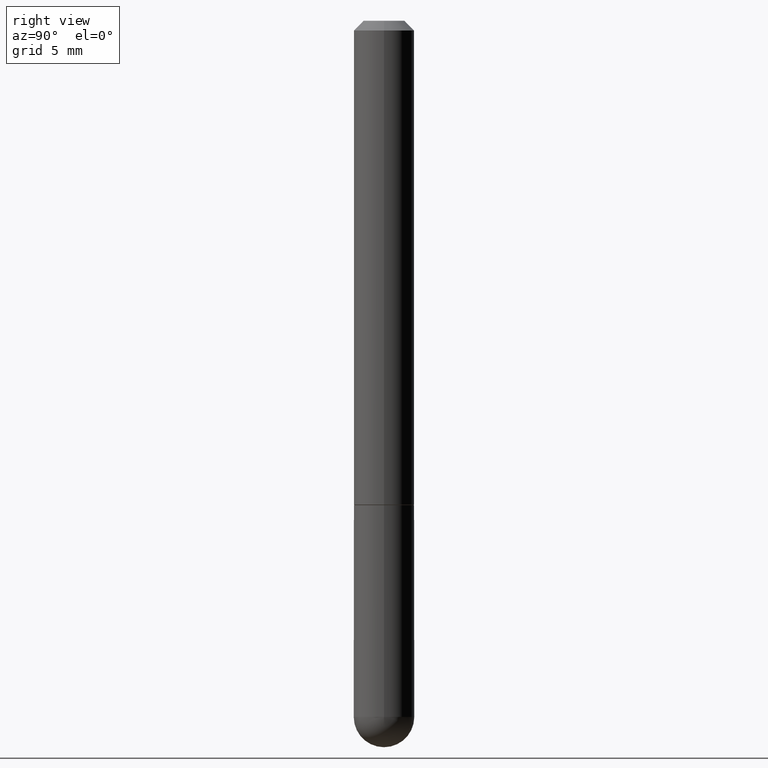
[diagram: clean part render]
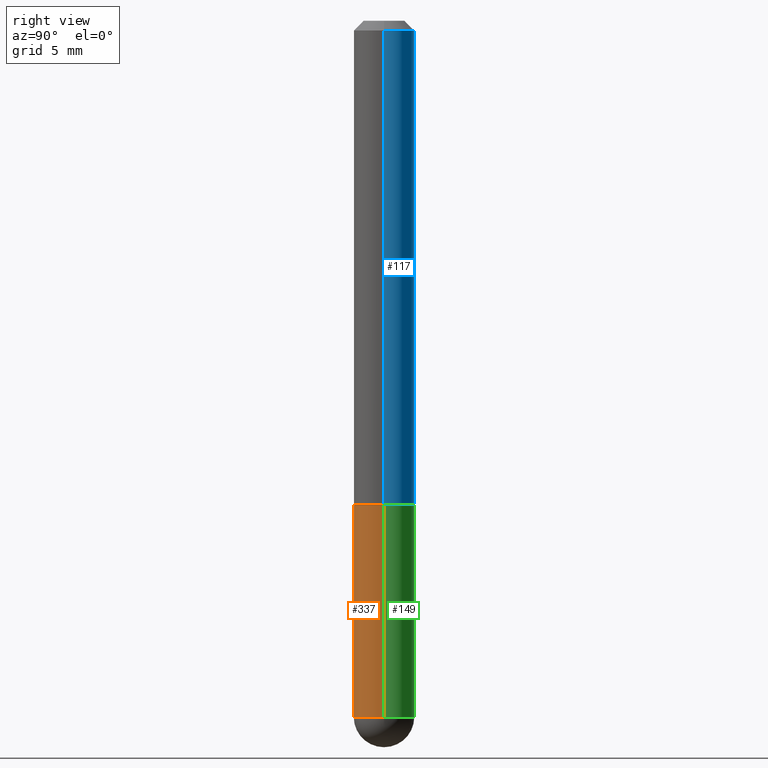
[diagram: same view with three faces highlighted in distinct colors, each labeled with its STEP entity id]
A machine part, right view with three faces highlighted in distinct colors.
Their STEP definitions:

[orange] entity #337 — the highlighted cylindrical surface (edge-blend (fillet) strip) has radius 1.5875 mm, axis along (-0, 0, 1).
#9 = AXIS2_PLACEMENT_3D ( 'NONE', #308, #77, #178 ) ;
#13 = EDGE_CURVE ( 'NONE', #321, #400, #357, .T. ) ;
#17 = CIRCLE ( 'NONE', #311, 0.06250000000000000000 ) ;
#20 = CARTESIAN_POINT ( 'NONE',  ( 0.000000000000000000, 0.000000000000000000, 0.000000000000000000 ) ) ;
#27 = DIRECTION ( 'NONE',  ( -2.445468806185136597E-29, 3.491481338843145583E-15, 1.000000000000000000 ) ) ;
#30 = ORIENTED_EDGE ( 'NONE', *, *, #95, .T. ) ;
#51 = EDGE_CURVE ( 'NONE', #217, #195, #212, .T. ) ;
#77 = DIRECTION ( 'NONE',  ( -2.445468806185136597E-29, 3.491481338843145583E-15, 1.000000000000000000 ) ) ;
#95 = EDGE_CURVE ( 'NONE', #400, #217, #287, .T. ) ;
#96 = LINE ( 'NONE', #233, #369 ) ;
#111 = CARTESIAN_POINT ( 'NONE',  ( 0.06250000000000000000, -3.927916506198537646E-15, -1.000000000000000222 ) ) ;
#113 = DIRECTION ( 'NONE',  ( -2.445468806185136877E-29, 3.491481338843145188E-15, 1.000000000000000000 ) ) ;
#116 = CYLINDRICAL_SURFACE ( 'NONE', #158, 0.06249999999999997224 ) ;
#119 = ORIENTED_EDGE ( 'NONE', *, *, #51, .T. ) ;
#121 = DIRECTION ( 'NONE',  ( -2.445468806185136597E-29, 3.491481338843145583E-15, 1.000000000000000000 ) ) ;
#129 = EDGE_LOOP ( 'NONE', ( #324, #253, #30, #119, #205 ) ) ;
#150 = DIRECTION ( 'NONE',  ( -2.445468806185136597E-29, 3.491481338843145583E-15, 1.000000000000000000 ) ) ;
#153 = VECTOR ( 'NONE', #113, 39.37007874015748143 ) ;
#155 = DIRECTION ( 'NONE',  ( -2.445468806185136877E-29, 3.491481338843145188E-15, 1.000000000000000000 ) ) ;
#158 = AXIS2_PLACEMENT_3D ( 'NONE', #20, #150, #275 ) ;
#160 = VERTEX_POINT ( 'NONE', #360 ) ;
#178 = DIRECTION ( 'NONE',  ( 1.000000000000000000, -6.982962677686268288E-15, 0.000000000000000000 ) ) ;
#184 = DIRECTION ( 'NONE',  ( 1.000000000000000000, -6.982962677686262766E-15, 0.000000000000000000 ) ) ;
#186 = CARTESIAN_POINT ( 'NONE',  ( 2.445468806185136877E-29, -3.491481338843145977E-15, -1.000000000000000222 ) ) ;
#195 = VERTEX_POINT ( 'NONE', #111 ) ;
#205 = ORIENTED_EDGE ( 'NONE', *, *, #284, .F. ) ;
#210 = CARTESIAN_POINT ( 'NONE',  ( 0.06249999999999997224, -4.364351673553914722E-16, 3.047610484872458469E-30 ) ) ;
#212 = LINE ( 'NONE', #210, #153 ) ;
#217 = VERTEX_POINT ( 'NONE', #305 ) ;
#233 = CARTESIAN_POINT ( 'NONE',  ( -0.06249999999999997224, 4.440892098500624190E-16, -3.074334431409315063E-30 ) ) ;
#248 = CARTESIAN_POINT ( 'NONE',  ( -0.06249999999999995143, -3.811153671865022332E-15, -1.437500000000000222 ) ) ;
#253 = ORIENTED_EDGE ( 'NONE', *, *, #13, .T. ) ;
#275 = DIRECTION ( 'NONE',  ( 1.000000000000000000, -6.982962677686266711E-15, 4.876176775795935793E-29 ) ) ;
#284 = EDGE_CURVE ( 'NONE', #160, #195, #17, .T. ) ;
#286 = DIRECTION ( 'NONE',  ( 1.000000000000000000, -6.982962677686268288E-15, 0.000000000000000000 ) ) ;
#287 = CIRCLE ( 'NONE', #9, 0.06249999999999995143 ) ;
#305 = CARTESIAN_POINT ( 'NONE',  ( 0.06249999999999995143, -4.691678049070475040E-15, -1.437500000000000222 ) ) ;
#308 = CARTESIAN_POINT ( 'NONE',  ( 3.515361408891134418E-29, -5.019004424587023131E-15, -1.437500000000000222 ) ) ;
#311 = AXIS2_PLACEMENT_3D ( 'NONE', #186, #121, #184 ) ;
#318 = CARTESIAN_POINT ( 'NONE',  ( -4.440892098500294840E-16, -0.06250000000000532907, -1.437500000000000000 ) ) ;
#321 = VERTEX_POINT ( 'NONE', #248 ) ;
#324 = ORIENTED_EDGE ( 'NONE', *, *, #403, .F. ) ;
#337 = ADVANCED_FACE ( 'NONE', ( #399 ), #116, .T. ) ;
#347 = AXIS2_PLACEMENT_3D ( 'NONE', #353, #27, #286 ) ;
#353 = CARTESIAN_POINT ( 'NONE',  ( 3.515361408891134418E-29, -5.019004424587023131E-15, -1.437500000000000222 ) ) ;
#357 = CIRCLE ( 'NONE', #347, 0.06249999999999995143 ) ;
#360 = CARTESIAN_POINT ( 'NONE',  ( -0.06250000000000000000, -3.811153671865022332E-15, -1.000000000000000222 ) ) ;
#369 = VECTOR ( 'NONE', #155, 39.37007874015748143 ) ;
#399 = FACE_OUTER_BOUND ( 'NONE', #129, .T. ) ;
#400 = VERTEX_POINT ( 'NONE', #318 ) ;
#403 = EDGE_CURVE ( 'NONE', #321, #160, #96, .T. ) ;

[blue] entity #117 — the highlighted cylindrical surface (edge-blend (fillet) strip) has radius 1.5875 mm, axis along (-0, 0, 1).
#12 = CARTESIAN_POINT ( 'NONE',  ( 0.06250000000000004163, -4.364351673553919652E-16, 3.047610484872461972E-30 ) ) ;
#21 = VERTEX_POINT ( 'NONE', #408 ) ;
#43 = CARTESIAN_POINT ( 'NONE',  ( 2.443023337378951835E-29, -3.487989857504302970E-15, -0.9990000000000002212 ) ) ;
#45 = CARTESIAN_POINT ( 'NONE',  ( 0.06250000000000013878, -3.924425024859695428E-15, -0.9990000000000002212 ) ) ;
#46 = VECTOR ( 'NONE', #115, 39.37007874015748143 ) ;
#50 = DIRECTION ( 'NONE',  ( -2.445468806185136597E-29, 3.491481338843145583E-15, 1.000000000000000000 ) ) ;
#64 = ORIENTED_EDGE ( 'NONE', *, *, #221, .T. ) ;
#74 = CARTESIAN_POINT ( 'NONE',  ( 4.890937612370289799E-31, -6.982962677686315028E-17, -0.02000000000000006981 ) ) ;
#75 = VECTOR ( 'NONE', #108, 39.37007874015748143 ) ;
#78 = EDGE_CURVE ( 'NONE', #21, #377, #133, .T. ) ;
#85 = EDGE_CURVE ( 'NONE', #127, #383, #303, .T. ) ;
#108 = DIRECTION ( 'NONE',  ( -2.445468806185136877E-29, 3.491481338843145188E-15, 1.000000000000000000 ) ) ;
#112 = DIRECTION ( 'NONE',  ( -2.445468806185136597E-29, 3.491481338843145583E-15, 1.000000000000000000 ) ) ;
#115 = DIRECTION ( 'NONE',  ( -2.445468806185136877E-29, 3.491481338843145188E-15, 1.000000000000000000 ) ) ;
#117 = ADVANCED_FACE ( 'NONE', ( #272 ), #336, .T. ) ;
#127 = VERTEX_POINT ( 'NONE', #45 ) ;
#130 = EDGE_CURVE ( 'NONE', #127, #21, #339, .T. ) ;
#133 = CIRCLE ( 'NONE', #314, 0.06249999999999995143 ) ;
#134 = CARTESIAN_POINT ( 'NONE',  ( -0.06250000000000013878, -1.334820532290516771E-15, -0.9990000000000002212 ) ) ;
#142 = CARTESIAN_POINT ( 'NONE',  ( -0.06250000000000004163, 4.440892098500629120E-16, -3.074334431409318216E-30 ) ) ;
#151 = EDGE_LOOP ( 'NONE', ( #352, #64, #298, #162 ) ) ;
#162 = ORIENTED_EDGE ( 'NONE', *, *, #130, .F. ) ;
#172 = CARTESIAN_POINT ( 'NONE',  ( 0.000000000000000000, 0.000000000000000000, 0.000000000000000000 ) ) ;
#174 = AXIS2_PLACEMENT_3D ( 'NONE', #43, #112, #301 ) ;
#175 = DIRECTION ( 'NONE',  ( 1.000000000000000000, -6.982962677686266711E-15, 0.000000000000000000 ) ) ;
#196 = AXIS2_PLACEMENT_3D ( 'NONE', #172, #208, #307 ) ;
#208 = DIRECTION ( 'NONE',  ( -2.445468806185136597E-29, 3.491481338843145583E-15, 1.000000000000000000 ) ) ;
#221 = EDGE_CURVE ( 'NONE', #383, #377, #389, .T. ) ;
#223 = CARTESIAN_POINT ( 'NONE',  ( -0.06249999999999995143, 3.666055405785281740E-16, -0.02000000000000006981 ) ) ;
#272 = FACE_OUTER_BOUND ( 'NONE', #151, .T. ) ;
#298 = ORIENTED_EDGE ( 'NONE', *, *, #78, .F. ) ;
#301 = DIRECTION ( 'NONE',  ( 1.000000000000000000, -6.982962677686270655E-15, 0.000000000000000000 ) ) ;
#303 = CIRCLE ( 'NONE', #174, 0.06250000000000013878 ) ;
#307 = DIRECTION ( 'NONE',  ( 1.000000000000000000, -6.982962677686266711E-15, 4.876176775795935793E-29 ) ) ;
#314 = AXIS2_PLACEMENT_3D ( 'NONE', #74, #50, #175 ) ;
#336 = CYLINDRICAL_SURFACE ( 'NONE', #196, 0.06250000000000004163 ) ;
#339 = LINE ( 'NONE', #12, #75 ) ;
#352 = ORIENTED_EDGE ( 'NONE', *, *, #85, .T. ) ;
#377 = VERTEX_POINT ( 'NONE', #223 ) ;
#383 = VERTEX_POINT ( 'NONE', #134 ) ;
#389 = LINE ( 'NONE', #142, #46 ) ;
#408 = CARTESIAN_POINT ( 'NONE',  ( 0.06249999999999995143, -4.986107516375835278E-16, -0.02000000000000006981 ) ) ;

[green] entity #149 — the highlighted cylindrical surface (edge-blend (fillet) strip) has radius 1.5875 mm, axis along (-0, 0, 1).
#8 = FACE_OUTER_BOUND ( 'NONE', #349, .T. ) ;
#14 = CARTESIAN_POINT ( 'NONE',  ( 2.445468806185136877E-29, -3.491481338843145977E-15, -1.000000000000000222 ) ) ;
#16 = DIRECTION ( 'NONE',  ( 1.000000000000000000, -6.982962677686266711E-15, 4.876176775795935793E-29 ) ) ;
#18 = AXIS2_PLACEMENT_3D ( 'NONE', #310, #19, #148 ) ;
#19 = DIRECTION ( 'NONE',  ( -2.445468806185136597E-29, 3.491481338843145583E-15, 1.000000000000000000 ) ) ;
#23 = ORIENTED_EDGE ( 'NONE', *, *, #215, .T. ) ;
#36 = CARTESIAN_POINT ( 'NONE',  ( 4.364351673554256397E-16, 0.06249999999999480971, -1.437500000000000444 ) ) ;
#51 = EDGE_CURVE ( 'NONE', #217, #195, #212, .T. ) ;
#53 = CIRCLE ( 'NONE', #395, 0.06250000000000000000 ) ;
#65 = EDGE_CURVE ( 'NONE', #195, #160, #53, .T. ) ;
#70 = ORIENTED_EDGE ( 'NONE', *, *, #65, .F. ) ;
#80 = CARTESIAN_POINT ( 'NONE',  ( 0.000000000000000000, 0.000000000000000000, 0.000000000000000000 ) ) ;
#82 = CYLINDRICAL_SURFACE ( 'NONE', #218, 0.06249999999999997224 ) ;
#96 = LINE ( 'NONE', #233, #369 ) ;
#99 = ORIENTED_EDGE ( 'NONE', *, *, #403, .T. ) ;
#111 = CARTESIAN_POINT ( 'NONE',  ( 0.06250000000000000000, -3.927916506198537646E-15, -1.000000000000000222 ) ) ;
#113 = DIRECTION ( 'NONE',  ( -2.445468806185136877E-29, 3.491481338843145188E-15, 1.000000000000000000 ) ) ;
#148 = DIRECTION ( 'NONE',  ( 1.000000000000000000, -6.982962677686268288E-15, 0.000000000000000000 ) ) ;
#149 = ADVANCED_FACE ( 'NONE', ( #8 ), #82, .T. ) ;
#153 = VECTOR ( 'NONE', #113, 39.37007874015748143 ) ;
#155 = DIRECTION ( 'NONE',  ( -2.445468806185136877E-29, 3.491481338843145188E-15, 1.000000000000000000 ) ) ;
#160 = VERTEX_POINT ( 'NONE', #360 ) ;
#181 = CARTESIAN_POINT ( 'NONE',  ( 3.515361408891134418E-29, -5.019004424587023131E-15, -1.437500000000000222 ) ) ;
#193 = ORIENTED_EDGE ( 'NONE', *, *, #51, .F. ) ;
#195 = VERTEX_POINT ( 'NONE', #111 ) ;
#210 = CARTESIAN_POINT ( 'NONE',  ( 0.06249999999999997224, -4.364351673553914722E-16, 3.047610484872458469E-30 ) ) ;
#212 = LINE ( 'NONE', #210, #153 ) ;
#215 = EDGE_CURVE ( 'NONE', #217, #385, #222, .T. ) ;
#217 = VERTEX_POINT ( 'NONE', #305 ) ;
#218 = AXIS2_PLACEMENT_3D ( 'NONE', #80, #394, #16 ) ;
#222 = CIRCLE ( 'NONE', #231, 0.06249999999999995143 ) ;
#231 = AXIS2_PLACEMENT_3D ( 'NONE', #181, #397, #392 ) ;
#233 = CARTESIAN_POINT ( 'NONE',  ( -0.06249999999999997224, 4.440892098500624190E-16, -3.074334431409315063E-30 ) ) ;
#242 = DIRECTION ( 'NONE',  ( 1.000000000000000000, -6.982962677686262766E-15, 0.000000000000000000 ) ) ;
#248 = CARTESIAN_POINT ( 'NONE',  ( -0.06249999999999995143, -3.811153671865022332E-15, -1.437500000000000222 ) ) ;
#249 = ORIENTED_EDGE ( 'NONE', *, *, #322, .T. ) ;
#268 = DIRECTION ( 'NONE',  ( -2.445468806185136597E-29, 3.491481338843145583E-15, 1.000000000000000000 ) ) ;
#305 = CARTESIAN_POINT ( 'NONE',  ( 0.06249999999999995143, -4.691678049070475040E-15, -1.437500000000000222 ) ) ;
#310 = CARTESIAN_POINT ( 'NONE',  ( 3.515361408891134418E-29, -5.019004424587023131E-15, -1.437500000000000222 ) ) ;
#321 = VERTEX_POINT ( 'NONE', #248 ) ;
#322 = EDGE_CURVE ( 'NONE', #385, #321, #343, .T. ) ;
#343 = CIRCLE ( 'NONE', #18, 0.06249999999999995143 ) ;
#349 = EDGE_LOOP ( 'NONE', ( #249, #99, #70, #193, #23 ) ) ;
#360 = CARTESIAN_POINT ( 'NONE',  ( -0.06250000000000000000, -3.811153671865022332E-15, -1.000000000000000222 ) ) ;
#369 = VECTOR ( 'NONE', #155, 39.37007874015748143 ) ;
#385 = VERTEX_POINT ( 'NONE', #36 ) ;
#392 = DIRECTION ( 'NONE',  ( 1.000000000000000000, -6.982962677686268288E-15, 0.000000000000000000 ) ) ;
#394 = DIRECTION ( 'NONE',  ( -2.445468806185136597E-29, 3.491481338843145583E-15, 1.000000000000000000 ) ) ;
#395 = AXIS2_PLACEMENT_3D ( 'NONE', #14, #268, #242 ) ;
#397 = DIRECTION ( 'NONE',  ( -2.445468806185136597E-29, 3.491481338843145583E-15, 1.000000000000000000 ) ) ;
#403 = EDGE_CURVE ( 'NONE', #321, #160, #96, .T. ) ;